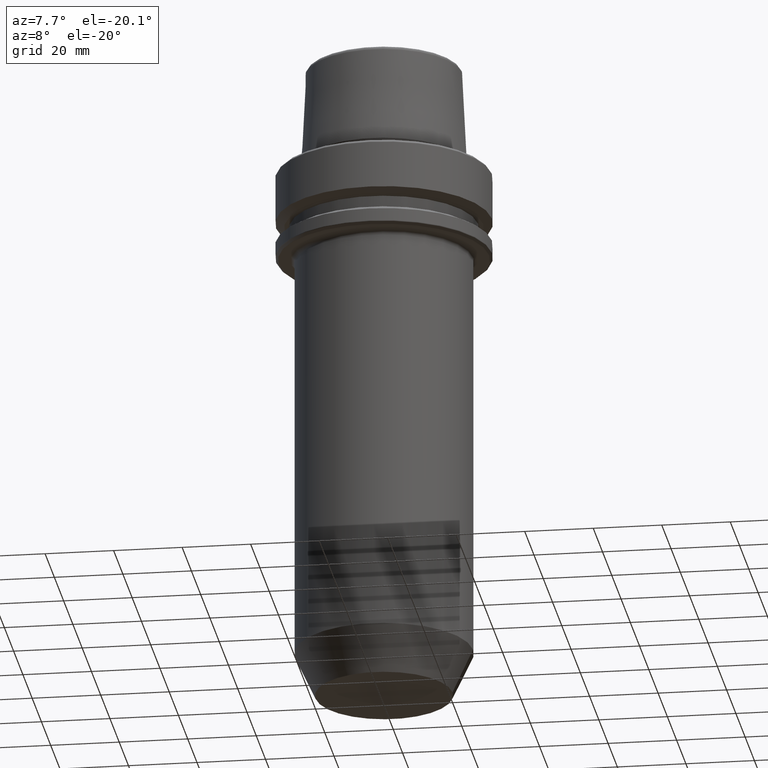
[diagram: clean part render]
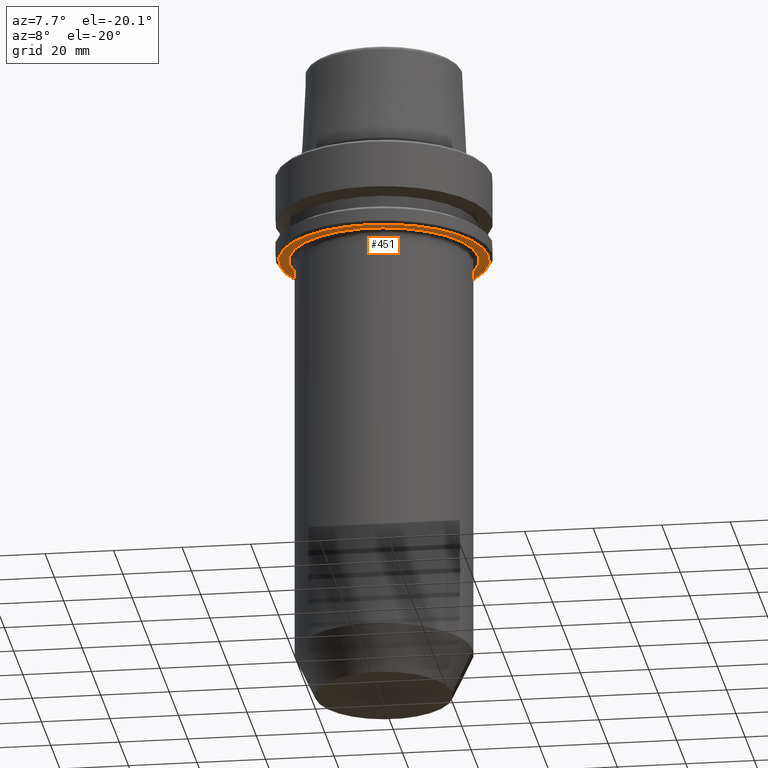
[diagram: same view with one face highlighted and labeled with its STEP entity id]
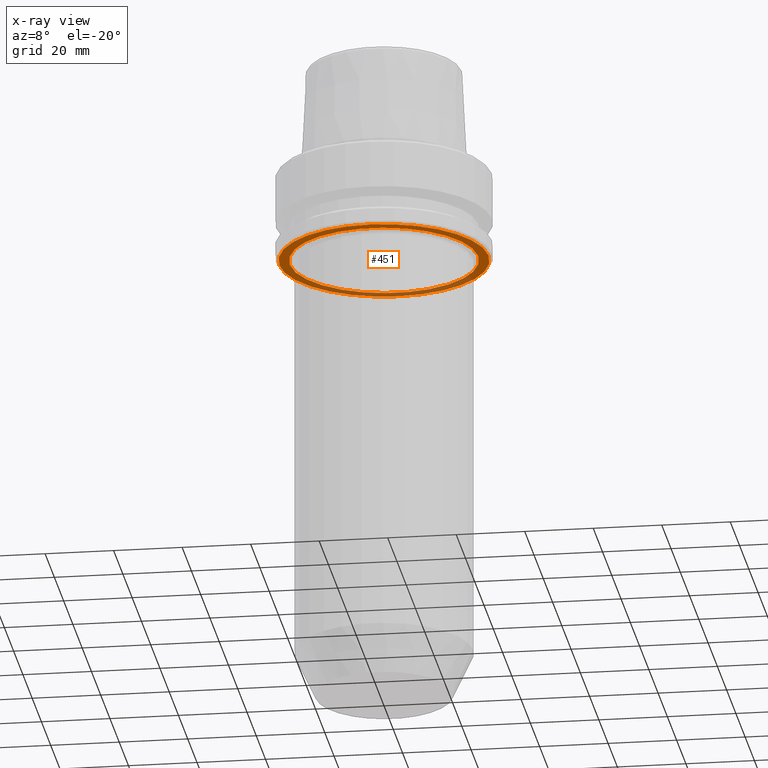
[diagram: x-ray of the same camera — body ghosted, the highlighted face saturated]
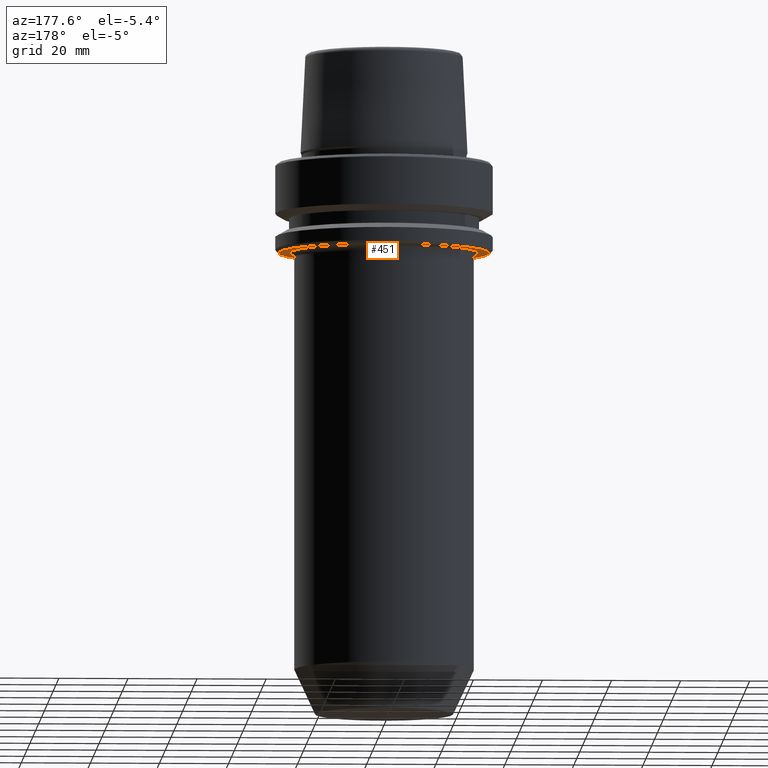
[diagram: same view with one face highlighted and labeled with its STEP entity id]
A machine part, auxiliary view. The second image highlights one B-rep face of the part: STEP entity #451.
The next image is the same camera in x-ray: the body ghosted, the highlighted face saturated — about 34% of this face is hidden behind the body in this view.
A second angle (auxiliary view) of the same face is appended — the face is thin or edge-on in the first view.
In plain terms, the highlighted planar face has unit normal (0, -0, 1).
Its self-contained STEP definition (entity closure, byte-faithful):
#18 = VERTEX_POINT ( 'NONE', #82 ) ;
#20 = ORIENTED_EDGE ( 'NONE', *, *, #402, .F. ) ;
#72 = FACE_BOUND ( 'NONE', #879, .T. ) ;
#82 = CARTESIAN_POINT ( 'NONE',  ( 27.50000000000000000, 0.0000000000000000000, -26.00000000000001100 ) ) ;
#83 = CARTESIAN_POINT ( 'NONE',  ( 30.53431457505076500, 0.0000000000000000000, -26.00000000000001100 ) ) ;
#95 = DIRECTION ( 'NONE',  ( 1.000000000000000000, 0.0000000000000000000, 0.0000000000000000000 ) ) ;
#99 = AXIS2_PLACEMENT_3D ( 'NONE', #273, #1151, #199 ) ;
#104 = VERTEX_POINT ( 'NONE', #1200 ) ;
#123 = PLANE ( 'NONE',  #705 ) ;
#151 = AXIS2_PLACEMENT_3D ( 'NONE', #918, #1074, #980 ) ;
#160 = CIRCLE ( 'NONE', #1077, 30.53431457505076500 ) ;
#173 = DIRECTION ( 'NONE',  ( -0.0000000000000000000, -0.0000000000000000000, 1.000000000000000000 ) ) ;
#199 = DIRECTION ( 'NONE',  ( 1.000000000000000000, 0.0000000000000000000, 0.0000000000000000000 ) ) ;
#273 = CARTESIAN_POINT ( 'NONE',  ( 0.0000000000000000000, 0.0000000000000000000, -26.00000000000000700 ) ) ;
#365 = VERTEX_POINT ( 'NONE', #83 ) ;
#387 = EDGE_CURVE ( 'NONE', #18, #583, #1128, .T. ) ;
#402 = EDGE_CURVE ( 'NONE', #365, #104, #860, .T. ) ;
#451 = ADVANCED_FACE ( 'NONE', ( #72, #1066 ), #123, .F. ) ;
#528 = EDGE_CURVE ( 'NONE', #583, #18, #1076, .T. ) ;
#551 = CARTESIAN_POINT ( 'NONE',  ( 0.0000000000000000000, 0.0000000000000000000, -26.00000000000001100 ) ) ;
#583 = VERTEX_POINT ( 'NONE', #1024 ) ;
#647 = AXIS2_PLACEMENT_3D ( 'NONE', #551, #706, #95 ) ;
#705 = AXIS2_PLACEMENT_3D ( 'NONE', #1073, #978, #906 ) ;
#706 = DIRECTION ( 'NONE',  ( -0.0000000000000000000, -0.0000000000000000000, 1.000000000000000000 ) ) ;
#730 = ORIENTED_EDGE ( 'NONE', *, *, #528, .T. ) ;
#748 = DIRECTION ( 'NONE',  ( 1.000000000000000000, 0.0000000000000000000, 0.0000000000000000000 ) ) ;
#788 = EDGE_LOOP ( 'NONE', ( #20, #1010 ) ) ;
#790 = ORIENTED_EDGE ( 'NONE', *, *, #387, .T. ) ;
#846 = CARTESIAN_POINT ( 'NONE',  ( 0.0000000000000000000, 0.0000000000000000000, -26.00000000000001100 ) ) ;
#860 = CIRCLE ( 'NONE', #647, 30.53431457505076500 ) ;
#879 = EDGE_LOOP ( 'NONE', ( #790, #730 ) ) ;
#906 = DIRECTION ( 'NONE',  ( 1.000000000000000000, 0.0000000000000000000, 0.0000000000000000000 ) ) ;
#918 = CARTESIAN_POINT ( 'NONE',  ( 0.0000000000000000000, 0.0000000000000000000, -26.00000000000000700 ) ) ;
#978 = DIRECTION ( 'NONE',  ( 0.0000000000000000000, -0.0000000000000000000, 1.000000000000000000 ) ) ;
#980 = DIRECTION ( 'NONE',  ( 1.000000000000000000, 0.0000000000000000000, 0.0000000000000000000 ) ) ;
#1010 = ORIENTED_EDGE ( 'NONE', *, *, #1171, .F. ) ;
#1024 = CARTESIAN_POINT ( 'NONE',  ( -27.50000000000000000, 3.367778697655221300E-015, -26.00000000000001100 ) ) ;
#1066 = FACE_OUTER_BOUND ( 'NONE', #788, .T. ) ;
#1073 = CARTESIAN_POINT ( 'NONE',  ( 0.0000000000000000000, 30.53431457505076500, -26.00000000000000700 ) ) ;
#1074 = DIRECTION ( 'NONE',  ( -0.0000000000000000000, -0.0000000000000000000, 1.000000000000000000 ) ) ;
#1076 = CIRCLE ( 'NONE', #99, 27.50000000000000000 ) ;
#1077 = AXIS2_PLACEMENT_3D ( 'NONE', #846, #173, #748 ) ;
#1128 = CIRCLE ( 'NONE', #151, 27.50000000000000000 ) ;
#1151 = DIRECTION ( 'NONE',  ( -0.0000000000000000000, -0.0000000000000000000, 1.000000000000000000 ) ) ;
#1171 = EDGE_CURVE ( 'NONE', #104, #365, #160, .T. ) ;
#1200 = CARTESIAN_POINT ( 'NONE',  ( -30.53431457505076500, 3.756694181974138600E-015, -26.00000000000001100 ) ) ;